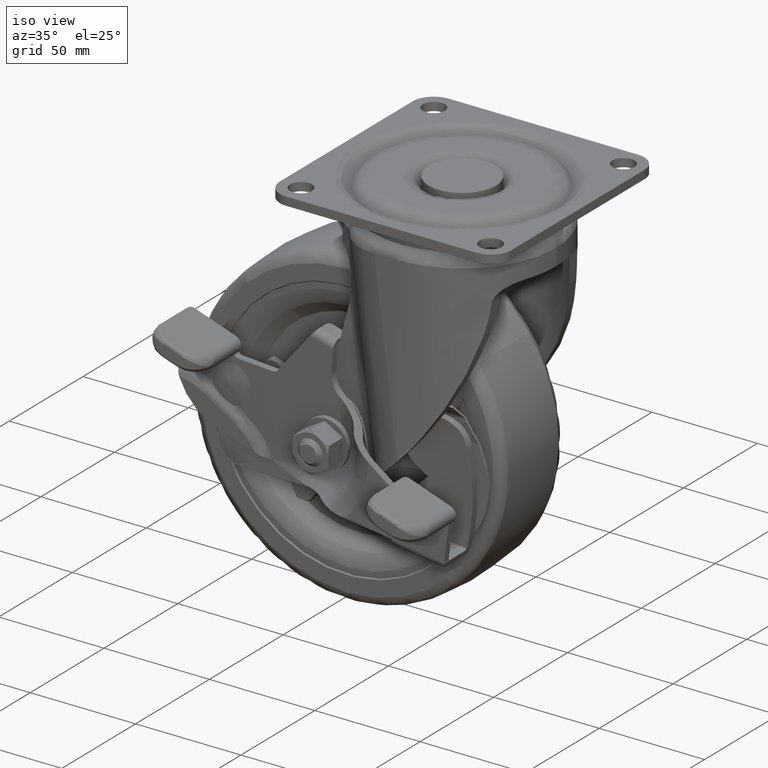
[diagram: clean part render]
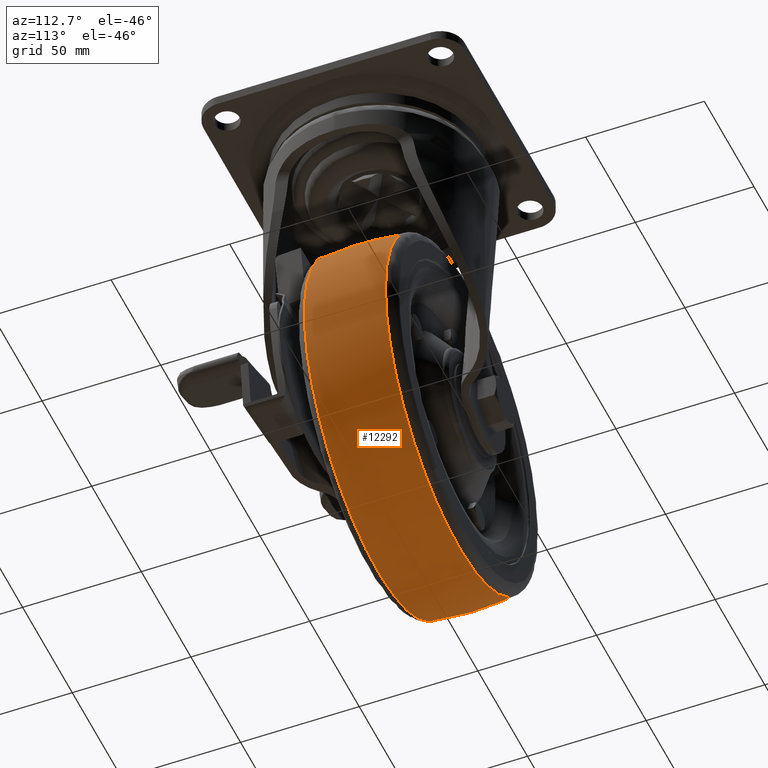
[diagram: tour spotlight — one face highlighted and labeled with its STEP entity id]
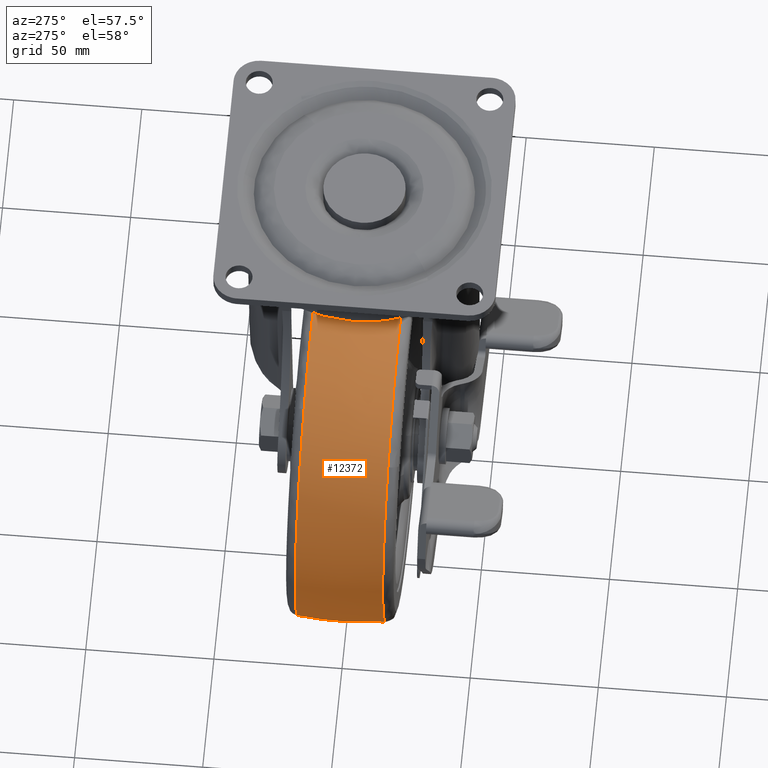
[diagram: tour spotlight — one face highlighted and labeled with its STEP entity id]
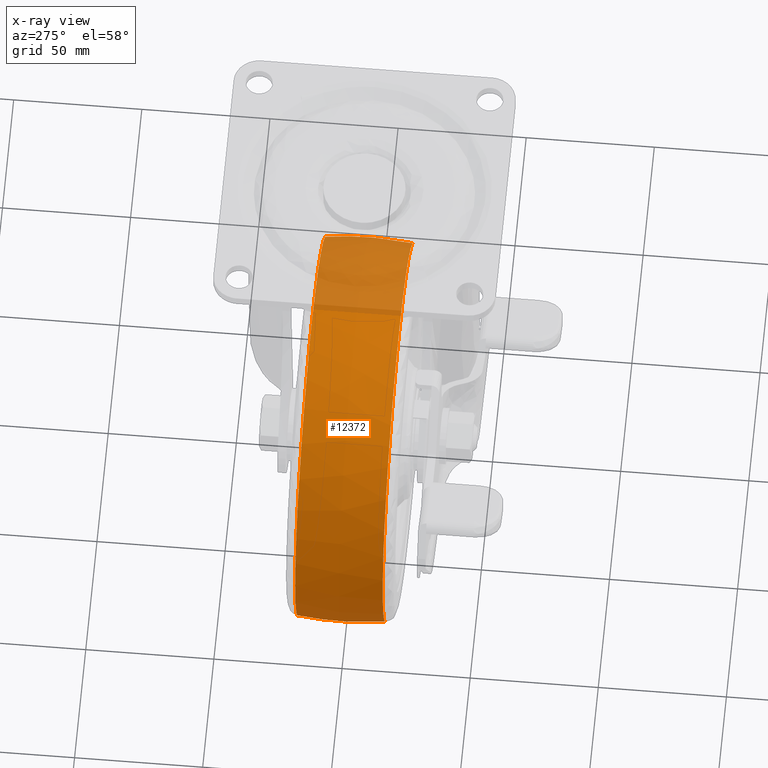
[diagram: x-ray of the same camera — body ghosted, this tour face saturated]
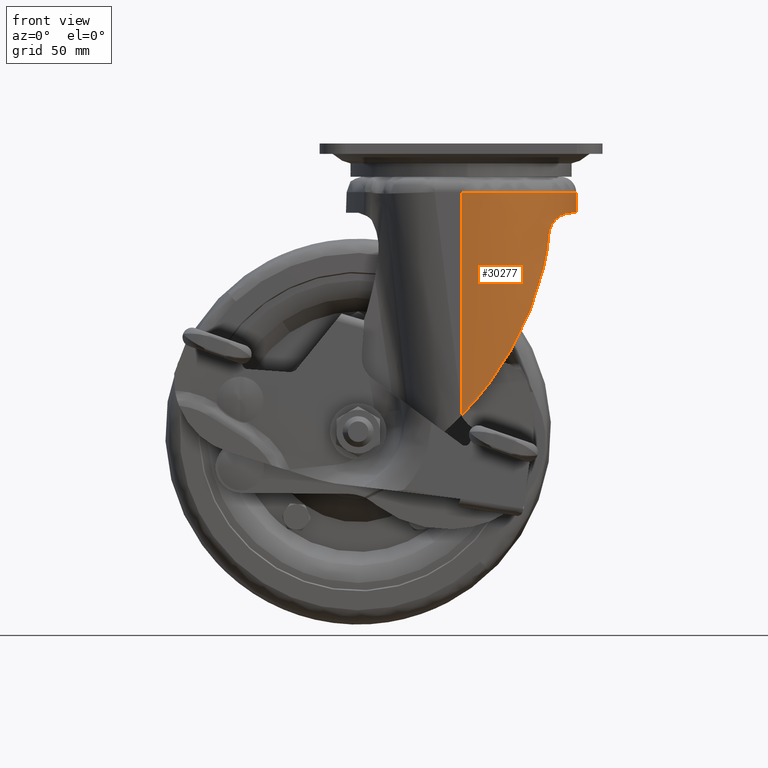
[diagram: tour spotlight — one face highlighted and labeled with its STEP entity id]
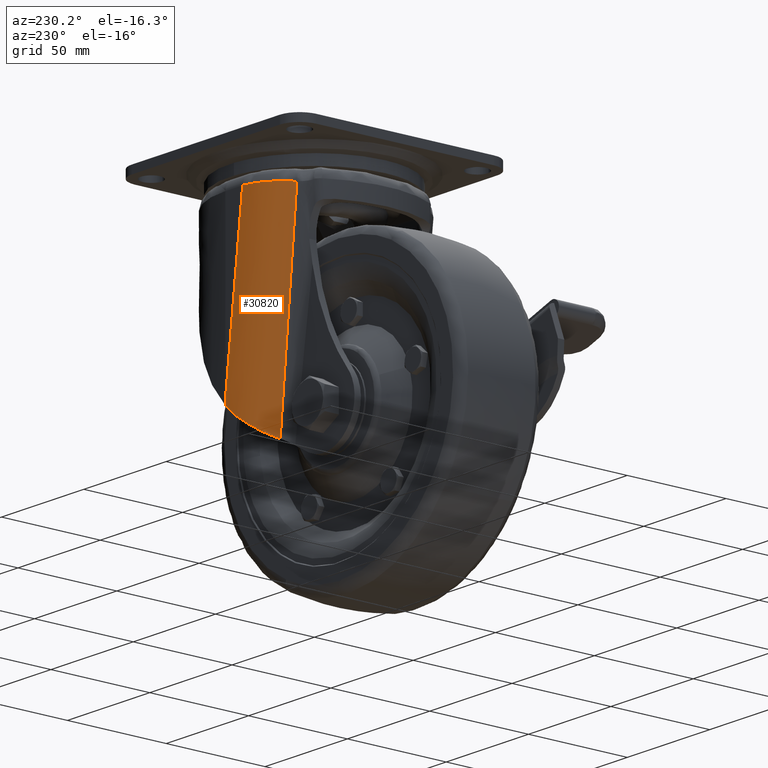
[diagram: tour spotlight — one face highlighted and labeled with its STEP entity id]
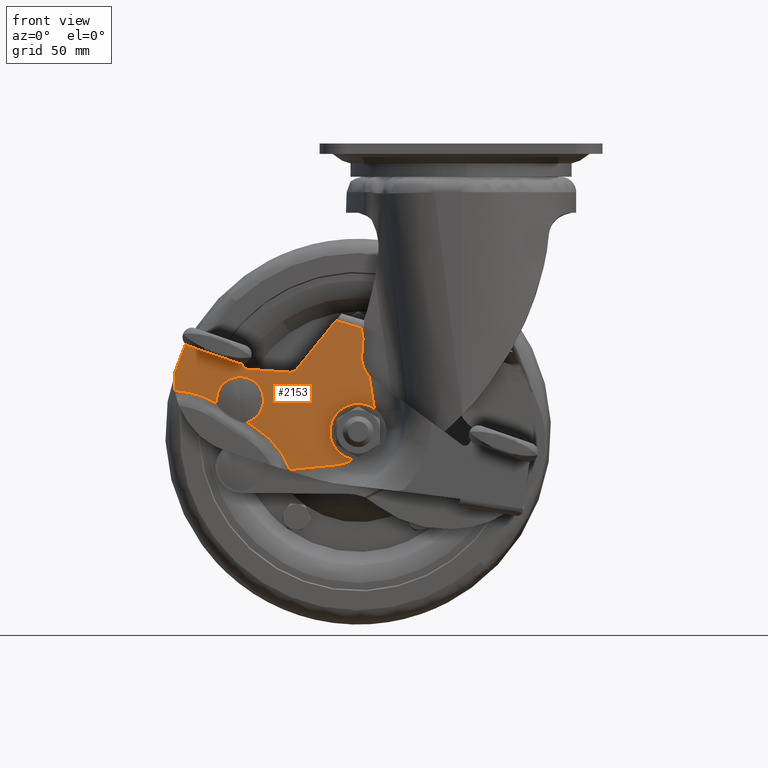
[diagram: tour spotlight — one face highlighted and labeled with its STEP entity id]
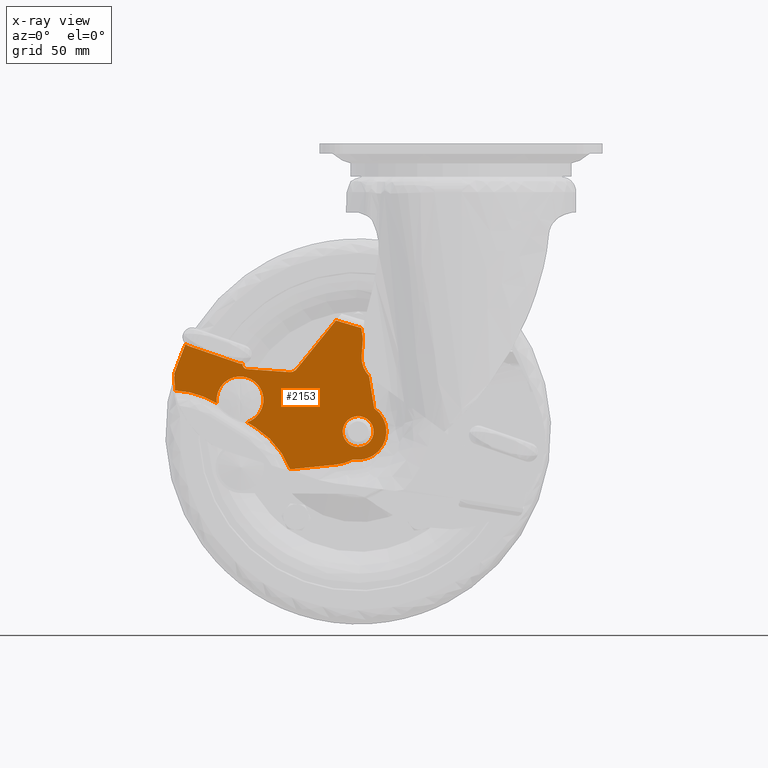
[diagram: x-ray of the same camera — body ghosted, this tour face saturated]
A machine part: a face-by-face anatomy tour. The part has 570 B-rep faces; the first image is the clean iso view, then the 5 largest visible faces are spotlighted one at a time (largest first), each with its STEP entity span.

Face 1 — auxiliary view, entity #12292. In plain terms, the highlighted face is a freeform B-spline surface patch.
Definition (entity closure, byte-faithful):
#12080=CARTESIAN_POINT('',(-99.801288911416719,-17.067975670754219,-155.448176490385290));
#12081=VERTEX_POINT('',#12080);
#12095=CARTESIAN_POINT('',(10.600658245617300,-17.067976047726422,-165.884232373904810));
#12096=VERTEX_POINT('',#12095);
#12097=CARTESIAN_POINT('',(-99.801288911416719,-17.067975670754219,-155.448176490385290));
#12098=CARTESIAN_POINT('',(-56.353115113555269,-17.067975836945088,-215.249458557347310));
#12099=CARTESIAN_POINT('',(3.448171947311643,-17.067976025415302,-171.801283143000090));
#12100=CARTESIAN_POINT('',(7.210549716229821,-17.067976037272839,-169.067755867698930));
#12101=CARTESIAN_POINT('',(10.600658245617307,-17.067976047726418,-165.884232373904720));
#12109=(BOUNDED_CURVE()B_SPLINE_CURVE(2,(#12097,#12098,#12099,#12100,#12101),.UNSPECIFIED.,.F.,.U.)B_SPLINE_CURVE_WITH_KNOTS((3,2,3),(0.0,0.250000000000000,0.271678741789646),.UNSPECIFIED.)CURVE()GEOMETRIC_REPRESENTATION_ITEM()RATIONAL_B_SPLINE_CURVE((1.0,0.707106781186547,1.0,0.974601774149620,0.953608360940244))REPRESENTATION_ITEM(''));
#12110=EDGE_CURVE('',#12081,#12096,#12109,.T.);
#12161=CARTESIAN_POINT('',(19.801283189378282,-17.067975670681509,-68.551823509609321));
#12162=VERTEX_POINT('',#12161);
#12163=CARTESIAN_POINT('',(10.600658245617307,-17.067976047726418,-165.884232373904720));
#12164=CARTESIAN_POINT('',(58.106001634832410,-17.067975859188060,-121.273746411665800));
#12165=CARTESIAN_POINT('',(19.801283189378282,-17.067975670681509,-68.551823509609321));
#12173=(BOUNDED_CURVE()B_SPLINE_CURVE(2,(#12163,#12164,#12165),.UNSPECIFIED.,.F.,.U.)B_SPLINE_CURVE_WITH_KNOTS((3,3),(0.271678741789646,0.500000000000000),.UNSPECIFIED.)CURVE()GEOMETRIC_REPRESENTATION_ITEM()RATIONAL_B_SPLINE_CURVE((0.953608360940244,0.732505007036928,1.0))REPRESENTATION_ITEM(''));
#12174=EDGE_CURVE('',#12096,#12162,#12173,.T.);
#12195=CARTESIAN_POINT('',(-100.825699189843280,-18.790862671410036,-153.646061333073530));
#12196=CARTESIAN_POINT('',(-101.908719896113210,-9.441236634920365,-154.387582589393820));
#12197=CARTESIAN_POINT('',(-101.908719896113170,0.0,-154.387582589393820));
#12198=CARTESIAN_POINT('',(-101.908719896113210,9.441236634920362,-154.387582589393820));
#12199=CARTESIAN_POINT('',(-100.825699189843280,18.790862671410036,-153.646061333073530));
#12200=CARTESIAN_POINT('',(-100.223784270479830,-18.790862671410046,-154.474526165856900));
#12201=CARTESIAN_POINT('',(-101.296087691779260,-9.441236634920367,-155.230798499805220));
#12202=CARTESIAN_POINT('',(-101.296087691779290,0.0,-155.230798499805300));
#12203=CARTESIAN_POINT('',(-101.296087691779260,9.441236634920363,-155.230798499805220));
#12204=CARTESIAN_POINT('',(-100.223784270479830,18.790862671410032,-154.474526165856900));
#12205=CARTESIAN_POINT('',(-56.302120411286715,-18.790862671410043,-214.927511686068390));
#12206=CARTESIAN_POINT('',(-56.592384755611448,-9.441236634920367,-216.760168492794240));
#12207=CARTESIAN_POINT('',(-56.592384755611477,0.0,-216.760168492794210));
#12208=CARTESIAN_POINT('',(-56.592384755611448,9.441236634920365,-216.760168492794240));
#12209=CARTESIAN_POINT('',(-56.302120411286715,18.790862671410043,-214.927511686068390));
#12210=CARTESIAN_POINT('',(3.312694206879343,-18.790862671410043,-171.614814618166040));
#12211=CARTESIAN_POINT('',(4.083890438079905,-9.441236634920367,-172.676275193691370));
#12212=CARTESIAN_POINT('',(4.083890438079891,0.0,-172.676275193691310));
#12213=CARTESIAN_POINT('',(4.083890438079905,9.441236634920363,-172.676275193691370));
#12214=CARTESIAN_POINT('',(3.312694206879343,18.790862671410029,-171.614814618166040));
#12215=CARTESIAN_POINT('',(62.927508825045372,-18.790862671410043,-128.302117550263740));
#12216=CARTESIAN_POINT('',(64.760165631771216,-9.441236634920367,-128.592381894588500));
#12217=CARTESIAN_POINT('',(64.760165631771230,0.0,-128.592381894588500));
#12218=CARTESIAN_POINT('',(64.760165631771216,9.441236634920365,-128.592381894588500));
#12219=CARTESIAN_POINT('',(62.927508825045372,18.790862671410043,-128.302117550263740));
#12220=CARTESIAN_POINT('',(19.005844965852262,-18.790862671410046,-67.849132030052331));
#12221=CARTESIAN_POINT('',(20.056462695603411,-9.441236634920367,-67.063011901599538));
#12222=CARTESIAN_POINT('',(20.056462695603408,0.0,-67.063011901599538));
#12223=CARTESIAN_POINT('',(20.056462695603411,9.441236634920363,-67.063011901599538));
#12224=CARTESIAN_POINT('',(19.005844965852262,18.790862671410032,-67.849132030052331));
#12225=CARTESIAN_POINT('',(18.403930046488814,-18.790862671410046,-67.020667197268878));
#12226=CARTESIAN_POINT('',(19.443830491269491,-9.441236634920365,-66.219795991188121));
#12227=CARTESIAN_POINT('',(19.443830491269498,0.0,-66.219795991188136));
#12228=CARTESIAN_POINT('',(19.443830491269491,9.441236634920362,-66.219795991188121));
#12229=CARTESIAN_POINT('',(18.403930046488814,18.790862671410036,-67.020667197268878));
#12237=(BOUNDED_SURFACE()B_SPLINE_SURFACE(2,2,((#12195,#12200,#12205,#12210,#12215,#12220,#12225),(#12196,#12201,#12206,#12211,#12216,#12221,#12226),(#12197,#12202,#12207,#12212,#12217,#12222,#12227),(#12198,#12203,#12208,#12213,#12218,#12223,#12228),(#12199,#12204,#12209,#12214,#12219,#12224,#12229)),.UNSPECIFIED.,.F.,.F.,.U.)B_SPLINE_SURFACE_WITH_KNOTS((3,2,3),(3,1,2,1,3),(0.0,19.164329818582051,38.328659637164101),(0.0,2.485281374238576,126.749350086167300,251.013418798096010,253.498700172334590),.UNSPECIFIED.)GEOMETRIC_REPRESENTATION_ITEM()RATIONAL_B_SPLINE_SURFACE(((0.977410108217283,0.971750874411567,0.683129950320034,0.966091640605850,0.683129950320034,0.971750874411567,0.977410108217283),(0.991999798660378,0.986256090109950,0.693326954038109,0.980512381559522,0.693326954038109,0.986256090109950,0.991999798660378),(1.011715728752538,1.005857864376269,0.707106781186548,1.0,0.707106781186548,1.005857864376269,1.011715728752538),(0.991999798660378,0.986256090109950,0.693326954038109,0.980512381559522,0.693326954038109,0.986256090109950,0.991999798660378),(0.977410108217283,0.971750874411567,0.683129950320034,0.966091640605850,0.683129950320034,0.971750874411567,0.977410108217283)))REPRESENTATION_ITEM('')SURFACE());
#12238=CARTESIAN_POINT('',(-99.801288722816025,17.067977502842581,-155.448176353358890));
#12239=VERTEX_POINT('',#12238);
#12240=CARTESIAN_POINT('',(-99.801288911416719,-17.067975670754219,-155.448176490385290));
#12241=CARTESIAN_POINT('',(-100.402235779233910,-11.232254873081921,-155.884789936327910));
#12242=CARTESIAN_POINT('',(-100.968541625197500,0.179681517935860,-156.296235207291400));
#12243=CARTESIAN_POINT('',(-100.365785338998410,11.585901867770710,-155.858307141975100));
#12244=CARTESIAN_POINT('',(-99.801288722816025,17.067977502842581,-155.448176353358890));
#12245=B_SPLINE_CURVE_WITH_KNOTS('',3,(#12240,#12241,#12242,#12243,#12244),.UNSPECIFIED.,.F.,.U.,(4,1,4),(-7.662209E-009,17.648392038733579,34.227281313237022),.UNSPECIFIED.);
#12246=EDGE_CURVE('',#12081,#12239,#12245,.T.);
#12247=ORIENTED_EDGE('',*,*,#12246,.T.);
#12248=CARTESIAN_POINT('',(-6.028545718795698,17.067971607545822,-177.649658080133490));
#12249=VERTEX_POINT('',#12248);
#12250=CARTESIAN_POINT('',(-99.801288722816025,17.067977502842581,-155.448176353358890));
#12251=CARTESIAN_POINT('',(-62.456326887211731,17.067974555209403,-206.849108354264730));
#12252=CARTESIAN_POINT('',(-6.028545718795705,17.067971607545822,-177.649658080133520));
#12260=(BOUNDED_CURVE()B_SPLINE_CURVE(2,(#12250,#12251,#12252),.UNSPECIFIED.,.F.,.U.)B_SPLINE_CURVE_WITH_KNOTS((3,3),(0.0,0.224102483945189),.UNSPECIFIED.)CURVE()GEOMETRIC_REPRESENTATION_ITEM()RATIONAL_B_SPLINE_CURVE((1.0,0.737447608532814,0.945604361813997))REPRESENTATION_ITEM(''));
#12261=EDGE_CURVE('',#12239,#12249,#12260,.T.);
#12262=ORIENTED_EDGE('',*,*,#12261,.T.);
#12263=CARTESIAN_POINT('',(19.801283000777389,17.067977502771960,-68.551823646635881));
#12264=VERTEX_POINT('',#12263);
#12265=CARTESIAN_POINT('',(-6.028545718795699,17.067971607545822,-177.649658080133460));
#12266=CARTESIAN_POINT('',(-1.069290437104812,17.067971798932639,-175.083412472960420));
#12267=CARTESIAN_POINT('',(3.448171590873926,17.067972021597800,-171.801284103774800));
#12268=CARTESIAN_POINT('',(63.249456621879332,17.067974969196062,-128.353106144913740));
#12269=CARTESIAN_POINT('',(19.801283000777389,17.067977502771960,-68.551823646635881));
#12277=(BOUNDED_CURVE()B_SPLINE_CURVE(2,(#12265,#12266,#12267,#12268,#12269),.UNSPECIFIED.,.F.,.U.)B_SPLINE_CURVE_WITH_KNOTS((3,2,3),(0.224102483945189,0.250000000000000,0.500000000000000),.UNSPECIFIED.)CURVE()GEOMETRIC_REPRESENTATION_ITEM()RATIONAL_B_SPLINE_CURVE((0.945604361813997,0.969659172653734,1.0,0.707106781186547,1.0))REPRESENTATION_ITEM(''));
#12278=EDGE_CURVE('',#12249,#12264,#12277,.T.);
#12279=ORIENTED_EDGE('',*,*,#12278,.T.);
#12280=CARTESIAN_POINT('',(19.801283189378282,-17.067975670681509,-68.551823509609321));
#12281=CARTESIAN_POINT('',(20.402237951156842,-11.232255805956891,-68.115204328368151));
#12282=CARTESIAN_POINT('',(20.968530157618989,0.179681546278295,-67.703768967082382));
#12283=CARTESIAN_POINT('',(20.365780275049438,11.585901885085990,-68.141692379889463));
#12284=CARTESIAN_POINT('',(19.801283000777389,17.067977502771960,-68.551823646635881));
#12285=B_SPLINE_CURVE_WITH_KNOTS('',3,(#12280,#12281,#12282,#12283,#12284),.UNSPECIFIED.,.F.,.U.,(4,1,4),(-7.663203E-009,17.648392038658820,34.227281313092533),.UNSPECIFIED.);
#12286=EDGE_CURVE('',#12162,#12264,#12285,.T.);
#12287=ORIENTED_EDGE('',*,*,#12286,.F.);
#12288=ORIENTED_EDGE('',*,*,#12174,.F.);
#12289=ORIENTED_EDGE('',*,*,#12110,.F.);
#12290=EDGE_LOOP('',(#12247,#12262,#12279,#12287,#12288,#12289));
#12291=FACE_OUTER_BOUND('',#12290,.T.);
#12292=ADVANCED_FACE('',(#12291),#12237,.T.);

Face 2 — auxiliary view, entity #12372. An x-ray twin of the same camera follows (body ghosted, this face saturated) — the face is partly hidden behind the body. In plain terms, the highlighted face is a freeform B-spline surface patch.
Definition (entity closure, byte-faithful):
#12065=CARTESIAN_POINT('',(-90.600663967662399,-17.067976047735520,-58.115767626096087));
#12066=VERTEX_POINT('',#12065);
#12080=CARTESIAN_POINT('',(-99.801288911416719,-17.067975670754219,-155.448176490385290));
#12081=VERTEX_POINT('',#12080);
#12082=CARTESIAN_POINT('',(-90.600663967662399,-17.067976047735520,-58.115767626096087));
#12083=CARTESIAN_POINT('',(-138.106007356866000,-17.067975859260756,-102.726253588335370));
#12084=CARTESIAN_POINT('',(-99.801288911416719,-17.067975670754219,-155.448176490385290));
#12092=(BOUNDED_CURVE()B_SPLINE_CURVE(2,(#12082,#12083,#12084),.UNSPECIFIED.,.F.,.U.)B_SPLINE_CURVE_WITH_KNOTS((3,3),(0.771678741789667,1.0),.UNSPECIFIED.)CURVE()GEOMETRIC_REPRESENTATION_ITEM()RATIONAL_B_SPLINE_CURVE((0.953608360940203,0.732505007036952,1.0))REPRESENTATION_ITEM(''));
#12093=EDGE_CURVE('',#12066,#12081,#12092,.T.);
#12161=CARTESIAN_POINT('',(19.801283189378282,-17.067975670681509,-68.551823509609321));
#12162=VERTEX_POINT('',#12161);
#12176=CARTESIAN_POINT('',(19.801283189378282,-17.067975670681509,-68.551823509609321));
#12177=CARTESIAN_POINT('',(-23.646890608483140,-17.067975836872385,-8.750541442647226));
#12178=CARTESIAN_POINT('',(-83.448177669350059,-17.067976025415302,-52.198716856994473));
#12179=CARTESIAN_POINT('',(-87.210555438271967,-17.067976037277408,-54.932244132298386));
#12180=CARTESIAN_POINT('',(-90.600663967662399,-17.067976047735520,-58.115767626096087));
#12188=(BOUNDED_CURVE()B_SPLINE_CURVE(2,(#12176,#12177,#12178,#12179,#12180),.UNSPECIFIED.,.F.,.U.)B_SPLINE_CURVE_WITH_KNOTS((3,2,3),(0.500000000000000,0.750000000000000,0.771678741789667),.UNSPECIFIED.)CURVE()GEOMETRIC_REPRESENTATION_ITEM()RATIONAL_B_SPLINE_CURVE((1.0,0.707106781186547,1.0,0.974601774149595,0.953608360940203))REPRESENTATION_ITEM(''));
#12189=EDGE_CURVE('',#12162,#12066,#12188,.T.);
#12238=CARTESIAN_POINT('',(-99.801288722816025,17.067977502842581,-155.448176353358890));
#12239=VERTEX_POINT('',#12238);
#12240=CARTESIAN_POINT('',(-99.801288911416719,-17.067975670754219,-155.448176490385290));
#12241=CARTESIAN_POINT('',(-100.402235779233910,-11.232254873081921,-155.884789936327910));
#12242=CARTESIAN_POINT('',(-100.968541625197500,0.179681517935860,-156.296235207291400));
#12243=CARTESIAN_POINT('',(-100.365785338998410,11.585901867770710,-155.858307141975100));
#12244=CARTESIAN_POINT('',(-99.801288722816025,17.067977502842581,-155.448176353358890));
#12245=B_SPLINE_CURVE_WITH_KNOTS('',3,(#12240,#12241,#12242,#12243,#12244),.UNSPECIFIED.,.F.,.U.,(4,1,4),(-7.662209E-009,17.648392038733579,34.227281313237022),.UNSPECIFIED.);
#12246=EDGE_CURVE('',#12081,#12239,#12245,.T.);
#12263=CARTESIAN_POINT('',(19.801283000777389,17.067977502771960,-68.551823646635881));
#12264=VERTEX_POINT('',#12263);
#12280=CARTESIAN_POINT('',(19.801283189378282,-17.067975670681509,-68.551823509609321));
#12281=CARTESIAN_POINT('',(20.402237951156842,-11.232255805956891,-68.115204328368151));
#12282=CARTESIAN_POINT('',(20.968530157618989,0.179681546278295,-67.703768967082382));
#12283=CARTESIAN_POINT('',(20.365780275049438,11.585901885085990,-68.141692379889463));
#12284=CARTESIAN_POINT('',(19.801283000777389,17.067977502771960,-68.551823646635881));
#12285=B_SPLINE_CURVE_WITH_KNOTS('',3,(#12280,#12281,#12282,#12283,#12284),.UNSPECIFIED.,.F.,.U.,(4,1,4),(-7.663203E-009,17.648392038658820,34.227281313092533),.UNSPECIFIED.);
#12286=EDGE_CURVE('',#12162,#12264,#12285,.T.);
#12293=CARTESIAN_POINT('',(20.825693467797336,-18.790862671410036,-70.353938666926524));
#12294=CARTESIAN_POINT('',(21.908714174067264,-9.441236634920365,-69.612417410606199));
#12295=CARTESIAN_POINT('',(21.908714174067253,0.0,-69.612417410606199));
#12296=CARTESIAN_POINT('',(21.908714174067264,9.441236634920362,-69.612417410606199));
#12297=CARTESIAN_POINT('',(20.825693467797336,18.790862671410036,-70.353938666926524));
#12298=CARTESIAN_POINT('',(20.223778548433891,-18.790862671410046,-69.525473834143071));
#12299=CARTESIAN_POINT('',(21.296081969733340,-9.441236634920367,-68.769201500194782));
#12300=CARTESIAN_POINT('',(21.296081969733343,0.0,-68.769201500194782));
#12301=CARTESIAN_POINT('',(21.296081969733340,9.441236634920363,-68.769201500194782));
#12302=CARTESIAN_POINT('',(20.223778548433891,18.790862671410032,-69.525473834143071));
#12303=CARTESIAN_POINT('',(-23.697885310759226,-18.790862671410043,-9.072488313931679));
#12304=CARTESIAN_POINT('',(-23.407620966434472,-9.441236634920367,-7.239831507205835));
#12305=CARTESIAN_POINT('',(-23.407620966434465,0.0,-7.239831507205835));
#12306=CARTESIAN_POINT('',(-23.407620966434472,9.441236634920365,-7.239831507205835));
#12307=CARTESIAN_POINT('',(-23.697885310759226,18.790862671410043,-9.072488313931679));
#12308=CARTESIAN_POINT('',(-83.312699928925269,-18.790862671410043,-52.385185381833971));
#12309=CARTESIAN_POINT('',(-84.083896160125789,-9.441236634920367,-51.323724806308654));
#12310=CARTESIAN_POINT('',(-84.083896160125789,0.0,-51.323724806308668));
#12311=CARTESIAN_POINT('',(-84.083896160125789,9.441236634920363,-51.323724806308654));
#12312=CARTESIAN_POINT('',(-83.312699928925269,18.790862671410029,-52.385185381833971));
#12313=CARTESIAN_POINT('',(-142.927514547091310,-18.790862671410043,-95.697882449736298));
#12314=CARTESIAN_POINT('',(-144.760171353817130,-9.441236634920367,-95.407618105411544));
#12315=CARTESIAN_POINT('',(-144.760171353817130,0.0,-95.407618105411544));
#12316=CARTESIAN_POINT('',(-144.760171353817130,9.441236634920365,-95.407618105411544));
#12317=CARTESIAN_POINT('',(-142.927514547091310,18.790862671410043,-95.697882449736298));
#12318=CARTESIAN_POINT('',(-99.005850687898203,-18.790862671410046,-156.150867969947740));
#12319=CARTESIAN_POINT('',(-100.056468417649310,-9.441236634920367,-156.936988098400460));
#12320=CARTESIAN_POINT('',(-100.056468417649370,0.0,-156.936988098400520));
#12321=CARTESIAN_POINT('',(-100.056468417649310,9.441236634920363,-156.936988098400460));
#12322=CARTESIAN_POINT('',(-99.005850687898203,18.790862671410032,-156.150867969947740));
#12323=CARTESIAN_POINT('',(-98.403935768534751,-18.790862671410046,-156.979332802731190));
#12324=CARTESIAN_POINT('',(-99.443836213315393,-9.441236634920365,-157.780204008811860));
#12325=CARTESIAN_POINT('',(-99.443836213315379,0.0,-157.780204008811950));
#12326=CARTESIAN_POINT('',(-99.443836213315393,9.441236634920362,-157.780204008811860));
#12327=CARTESIAN_POINT('',(-98.403935768534751,18.790862671410036,-156.979332802731190));
#12335=(BOUNDED_SURFACE()B_SPLINE_SURFACE(2,2,((#12293,#12298,#12303,#12308,#12313,#12318,#12323),(#12294,#12299,#12304,#12309,#12314,#12319,#12324),(#12295,#12300,#12305,#12310,#12315,#12320,#12325),(#12296,#12301,#12306,#12311,#12316,#12321,#12326),(#12297,#12302,#12307,#12312,#12317,#12322,#12327)),.UNSPECIFIED.,.F.,.F.,.U.)B_SPLINE_SURFACE_WITH_KNOTS((3,2,3),(3,1,2,1,3),(0.0,19.164329818582051,38.328659637164101),(0.0,2.485281374238576,126.749350086167300,251.013418798096010,253.498700172334590),.UNSPECIFIED.)GEOMETRIC_REPRESENTATION_ITEM()RATIONAL_B_SPLINE_SURFACE(((0.977410108217283,0.971750874411567,0.683129950320034,0.966091640605850,0.683129950320034,0.971750874411567,0.977410108217283),(0.991999798660378,0.986256090109950,0.693326954038109,0.980512381559522,0.693326954038109,0.986256090109950,0.991999798660378),(1.011715728752538,1.005857864376269,0.707106781186548,1.0,0.707106781186548,1.005857864376269,1.011715728752538),(0.991999798660378,0.986256090109950,0.693326954038109,0.980512381559522,0.693326954038109,0.986256090109950,0.991999798660378),(0.977410108217283,0.971750874411567,0.683129950320034,0.966091640605850,0.683129950320034,0.971750874411567,0.977410108217283)))REPRESENTATION_ITEM('')SURFACE());
#12336=ORIENTED_EDGE('',*,*,#12246,.F.);
#12337=ORIENTED_EDGE('',*,*,#12093,.F.);
#12338=ORIENTED_EDGE('',*,*,#12189,.F.);
#12339=ORIENTED_EDGE('',*,*,#12286,.T.);
#12340=CARTESIAN_POINT('',(-73.971460003250797,17.067971607535242,-46.350341919865301));
#12341=VERTEX_POINT('',#12340);
#12342=CARTESIAN_POINT('',(19.801283000777389,17.067977502771960,-68.551823646635881));
#12343=CARTESIAN_POINT('',(-17.543678834831436,17.067974555138797,-17.150891645723721));
#12344=CARTESIAN_POINT('',(-73.971460003250812,17.067971607535235,-46.350341919865308));
#12352=(BOUNDED_CURVE()B_SPLINE_CURVE(2,(#12342,#12343,#12344),.UNSPECIFIED.,.F.,.U.)B_SPLINE_CURVE_WITH_KNOTS((3,3),(0.500000000000000,0.724102483945209),.UNSPECIFIED.)CURVE()GEOMETRIC_REPRESENTATION_ITEM()RATIONAL_B_SPLINE_CURVE((1.0,0.737447608532790,0.945604361814034))REPRESENTATION_ITEM(''));
#12353=EDGE_CURVE('',#12264,#12341,#12352,.T.);
#12354=ORIENTED_EDGE('',*,*,#12353,.T.);
#12355=CARTESIAN_POINT('',(-73.971460003250812,17.067971607535235,-46.350341919865308));
#12356=CARTESIAN_POINT('',(-78.930715284937435,17.067971798927324,-48.916587527036903));
#12357=CARTESIAN_POINT('',(-83.448177312912549,17.067972021597829,-52.198715896219888));
#12358=CARTESIAN_POINT('',(-143.249462343918000,17.067974969266704,-95.646893855080975));
#12359=CARTESIAN_POINT('',(-99.801288722816025,17.067977502842581,-155.448176353358890));
#12367=(BOUNDED_CURVE()B_SPLINE_CURVE(2,(#12355,#12356,#12357,#12358,#12359),.UNSPECIFIED.,.F.,.U.)B_SPLINE_CURVE_WITH_KNOTS((3,2,3),(0.724102483945209,0.750000000000000,1.0),.UNSPECIFIED.)CURVE()GEOMETRIC_REPRESENTATION_ITEM()RATIONAL_B_SPLINE_CURVE((0.945604361814034,0.969659172653757,1.0,0.707106781186547,1.0))REPRESENTATION_ITEM(''));
#12368=EDGE_CURVE('',#12341,#12239,#12367,.T.);
#12369=ORIENTED_EDGE('',*,*,#12368,.T.);
#12370=EDGE_LOOP('',(#12336,#12337,#12338,#12339,#12354,#12369));
#12371=FACE_OUTER_BOUND('',#12370,.T.);
#12372=ADVANCED_FACE('',(#12371),#12335,.T.);

Face 3 — front view, entity #30277. In plain terms, the highlighted face is a freeform B-spline surface patch.
Definition (entity closure, byte-faithful):
#26826=CARTESIAN_POINT('',(0.199999999999770,-44.866289000000002,-18.899999999999999));
#26827=VERTEX_POINT('',#26826);
#27756=CARTESIAN_POINT('',(0.199999999999783,-44.866289000000002,-103.455417068400000));
#27757=VERTEX_POINT('',#27756);
#27758=CARTESIAN_POINT('',(0.199999999999783,-44.866289000000002,-103.455417068400000));
#27759=CARTESIAN_POINT('',(0.199999999999770,-44.866289000000002,-18.899999999999999));
#27760=QUASI_UNIFORM_CURVE('',1,(#27758,#27759),.UNSPECIFIED.,.F.,.U.);
#27761=EDGE_CURVE('',#27757,#26827,#27760,.T.);
#27789=CARTESIAN_POINT('',(0.354147820909089,-44.866022315131197,-105.586709417799200));
#27790=VERTEX_POINT('',#27789);
#27832=CARTESIAN_POINT('',(0.354147820909089,-44.866022315131197,-105.586709417799200));
#27833=CARTESIAN_POINT('',(0.199999999999783,-44.866289000000002,-103.455417068400000));
#27834=QUASI_UNIFORM_CURVE('',1,(#27832,#27833),.UNSPECIFIED.,.F.,.U.);
#27835=EDGE_CURVE('',#27790,#27757,#27834,.T.);
#27890=CARTESIAN_POINT('',(32.070784013565849,-31.444341081051000,-48.361416808509503));
#27891=VERTEX_POINT('',#27890);
#27897=CARTESIAN_POINT('',(32.070784013565849,-31.444341081050950,-48.361416808509503));
#27898=CARTESIAN_POINT('',(31.746602575267239,-31.776257661449900,-49.705694394740171));
#27899=CARTESIAN_POINT('',(31.401372962700890,-32.119337165806961,-51.037767299176210));
#27900=CARTESIAN_POINT('',(30.669520600953192,-32.821178812800312,-53.679661433772722));
#27901=CARTESIAN_POINT('',(30.282896391754591,-33.179943994683050,-54.989481185242880));
#27902=CARTESIAN_POINT('',(29.061495895328608,-34.270794656692360,-58.888308615654950));
#27903=CARTESIAN_POINT('',(28.165321783400049,-35.017226022204767,-61.446799021046303));
#27904=CARTESIAN_POINT('',(26.208790262799269,-36.506855198028049,-66.493782647142126));
#27905=CARTESIAN_POINT('',(25.148427379475660,-37.250181422107318,-68.982237665366355));
#27906=CARTESIAN_POINT('',(22.859005378650821,-38.697350910883081,-73.897318348877576));
#27907=CARTESIAN_POINT('',(21.629963984485901,-39.401327179787629,-76.323914548198019));
#27908=CARTESIAN_POINT('',(18.994403042360499,-40.734774624440853,-81.121259429321753));
#27909=CARTESIAN_POINT('',(17.587929429050970,-41.364404002365227,-83.491983795336751));
#27910=CARTESIAN_POINT('',(15.710178180944400,-42.081088248142777,-86.423350870433850));
#27911=CARTESIAN_POINT('',(15.328298810330599,-42.221000867454961,-87.008503187602898));
#27912=CARTESIAN_POINT('',(14.555180902444761,-42.492100584925737,-88.171328751092929));
#27913=CARTESIAN_POINT('',(14.163700614615900,-42.623389802925601,-88.749397660528274));
#27914=CARTESIAN_POINT('',(12.974441601642861,-43.003628980143503,-90.473650895135634));
#27915=CARTESIAN_POINT('',(12.161851329737690,-43.238962625174331,-91.609885286584742));
#27916=CARTESIAN_POINT('',(9.664163811935211,-43.883355653755757,-94.979276126711397));
#27917=CARTESIAN_POINT('',(7.919274251416211,-44.231156424912783,-97.173170038908395));
#27918=CARTESIAN_POINT('',(5.177591848257485,-44.596941077077886,-100.386456164196700));
#27919=CARTESIAN_POINT('',(4.242943600487857,-44.692808103629368,-101.444612878654790));
#27920=CARTESIAN_POINT('',(2.330948366536485,-44.825612739758903,-103.535070146768800));
#27921=CARTESIAN_POINT('',(1.353603525352972,-44.862564069537562,-104.567370453118500));
#27922=CARTESIAN_POINT('',(0.354147820909083,-44.866022315131197,-105.586709417799200));
#27923=B_SPLINE_CURVE_WITH_KNOTS('',3,(#27897,#27898,#27899,#27900,#27901,#27902,#27903,#27904,#27905,#27906,#27907,#27908,#27909,#27910,#27911,#27912,#27913,#27914,#27915,#27916,#27917,#27918,#27919,#27920,#27921,#27922),.UNSPECIFIED.,.F.,.U.,(4,2,2,2,2,2,2,2,2,2,2,2,4),(0.0,0.062500000000000,0.125000000000000,0.250000000000000,0.375000000000000,0.500000000000000,0.625000000000000,0.656250000000000,0.687500000000000,0.750000000000000,0.875000000000000,0.937500000000000,1.0),.UNSPECIFIED.);
#27924=EDGE_CURVE('',#27891,#27790,#27923,.T.);
#29857=CARTESIAN_POINT('',(44.750000000000000,-0.316289000000025,-18.899999999999999));
#29858=VERTEX_POINT('',#29857);
#29900=CARTESIAN_POINT('',(44.750000000000000,-0.316289000000025,-18.899999999999999));
#29901=CARTESIAN_POINT('',(44.749999999999773,-44.866289000000037,-18.900000000000002));
#29902=CARTESIAN_POINT('',(0.199999999999777,-44.866289000000023,-18.899999999999999));
#29910=(BOUNDED_CURVE()B_SPLINE_CURVE(2,(#29900,#29901,#29902),.UNSPECIFIED.,.F.,.U.)CURVE()GEOMETRIC_REPRESENTATION_ITEM()QUASI_UNIFORM_CURVE()RATIONAL_B_SPLINE_CURVE((1.0,0.707106781186548,1.0))REPRESENTATION_ITEM(''));
#29911=EDGE_CURVE('',#29858,#26827,#29910,.T.);
#30179=CARTESIAN_POINT('',(-1.334284978626255,-44.839861066989002,-16.732832264555011));
#30180=CARTESIAN_POINT('',(-1.334284978626255,-44.839861066989002,-107.808056346630290));
#30181=CARTESIAN_POINT('',(47.254667716049205,-46.514239307226482,-16.732832264555018));
#30182=CARTESIAN_POINT('',(47.254667716049205,-46.514239307226482,-107.808056346630340));
#30183=CARTESIAN_POINT('',(44.687868180138672,2.035749432208256,-16.732832264555011));
#30184=CARTESIAN_POINT('',(44.687868180138672,2.035749432208256,-107.808056346630290));
#30192=(BOUNDED_SURFACE()B_SPLINE_SURFACE(1,2,((#30179,#30181,#30183),(#30180,#30182,#30184)),.UNSPECIFIED.,.F.,.F.,.U.)B_SPLINE_SURFACE_WITH_KNOTS((2,2),(3,3),(0.0,91.075224082075323),(0.0,78.409876604924733),.UNSPECIFIED.)GEOMETRIC_REPRESENTATION_ITEM()RATIONAL_B_SPLINE_SURFACE(((1.0,0.675590207615660,1.0),(1.0,0.675590207615660,1.0)))REPRESENTATION_ITEM('')SURFACE());
#30193=CARTESIAN_POINT('',(44.750000000000000,-0.316289000000025,-26.899999999999999));
#30194=VERTEX_POINT('',#30193);
#30195=CARTESIAN_POINT('',(44.750000000000000,-0.316289000000025,-18.899999999999999));
#30196=CARTESIAN_POINT('',(44.750000000000000,-0.316289000000025,-26.899999999999999));
#30197=QUASI_UNIFORM_CURVE('',1,(#30195,#30196),.UNSPECIFIED.,.F.,.U.);
#30198=EDGE_CURVE('',#29858,#30194,#30197,.T.);
#30199=ORIENTED_EDGE('',*,*,#30198,.F.);
#30200=ORIENTED_EDGE('',*,*,#29911,.T.);
#30201=ORIENTED_EDGE('',*,*,#27761,.F.);
#30202=ORIENTED_EDGE('',*,*,#27835,.F.);
#30203=ORIENTED_EDGE('',*,*,#27924,.F.);
#30204=CARTESIAN_POINT('',(34.162931724782403,-29.147205888953700,-35.194157685212687));
#30205=VERTEX_POINT('',#30204);
#30206=CARTESIAN_POINT('',(34.162931724782403,-29.147205888953700,-35.194157685212687));
#30207=CARTESIAN_POINT('',(33.985754807335667,-29.355920983712149,-37.446333085582637));
#30208=CARTESIAN_POINT('',(33.720325611172143,-29.665301102119319,-39.666924238428521));
#30209=CARTESIAN_POINT('',(33.021170746538431,-30.445137157138689,-44.053264909792638));
#30210=CARTESIAN_POINT('',(32.587429611858667,-30.915368043101921,-46.219051232794371));
#30211=CARTESIAN_POINT('',(32.070784013565849,-31.444341081051000,-48.361416808509503));
#30212=B_SPLINE_CURVE_WITH_KNOTS('',3,(#30206,#30207,#30208,#30209,#30210,#30211),.UNSPECIFIED.,.F.,.U.,(4,2,4),(0.0,0.500000000000000,1.0),.UNSPECIFIED.);
#30213=EDGE_CURVE('',#30205,#27891,#30212,.T.);
#30214=ORIENTED_EDGE('',*,*,#30213,.F.);
#30215=CARTESIAN_POINT('',(43.135210511504113,-12.202003043876820,-26.899999999999999));
#30216=VERTEX_POINT('',#30215);
#30217=CARTESIAN_POINT('',(43.135210511504113,-12.202003043876820,-26.899999999999999));
#30218=CARTESIAN_POINT('',(42.881577267248687,-13.118211922419800,-26.899999999999999));
#30219=CARTESIAN_POINT('',(42.599946121295567,-14.021562865159391,-26.910584508964721));
#30220=CARTESIAN_POINT('',(41.982681428001513,-15.801685200741090,-26.968719265997109));
#30221=CARTESIAN_POINT('',(41.647039549244496,-16.678460952166059,-27.016196525678080));
#30222=CARTESIAN_POINT('',(40.923589089616861,-18.404048674678510,-27.168141797444459));
#30223=CARTESIAN_POINT('',(40.535765151328583,-19.252872996779079,-27.272435112534620));
#30224=CARTESIAN_POINT('',(39.916420019602469,-20.503534893857310,-27.492420931907070));
#30225=CARTESIAN_POINT('',(39.703706064854998,-20.916652968564680,-27.576413934934148));
#30226=CARTESIAN_POINT('',(39.266074321807793,-21.734963692398470,-27.770603165331810));
#30227=CARTESIAN_POINT('',(39.041154582142902,-22.140158180362679,-27.880774688330401));
#30228=CARTESIAN_POINT('',(38.579535227366073,-22.942111217255949,-28.133720887223170));
#30229=CARTESIAN_POINT('',(38.345247692936077,-23.334655986534251,-28.275203928989939));
#30230=CARTESIAN_POINT('',(37.872328078207460,-24.100755305765968,-28.593610507162101));
#30231=CARTESIAN_POINT('',(37.633601112700717,-24.474467095178429,-28.770544620084632));
#30232=CARTESIAN_POINT('',(37.334038868909637,-24.928836711558429,-29.018687619893409));
#30233=CARTESIAN_POINT('',(37.274070656600387,-25.019070393989910,-29.069671552136011));
#30234=CARTESIAN_POINT('',(37.154073386424997,-25.198221879110640,-29.174500331169341));
#30235=CARTESIAN_POINT('',(37.093973303628587,-25.287243670419439,-29.228411449259390));
#30236=CARTESIAN_POINT('',(36.914248980622027,-25.551419174281570,-29.394141040565842));
#30237=CARTESIAN_POINT('',(36.795292745835717,-25.723554702065311,-29.509848026256400));
#30238=CARTESIAN_POINT('',(36.441911774070157,-26.227574907797180,-29.873877689311989));
#30239=CARTESIAN_POINT('',(36.210913050705038,-26.547136602723619,-30.138986488863381));
#30240=CARTESIAN_POINT('',(35.875791839723597,-26.999159118943108,-30.576971393268082));
#30241=CARTESIAN_POINT('',(35.765994069671443,-27.145266581044641,-30.729712614614179));
#30242=CARTESIAN_POINT('',(35.604895762011587,-27.357067911361050,-30.970125211824381));
#30243=CARTESIAN_POINT('',(35.551797542909000,-27.426440145035379,-31.052149206546709));
#30244=CARTESIAN_POINT('',(35.446947706921463,-27.562620165260299,-31.220211050109949));
#30245=CARTESIAN_POINT('',(35.395119169785843,-27.629525243483101,-31.306394424930321));
#30246=CARTESIAN_POINT('',(35.141967070097458,-27.954487869614191,-31.744079186790469));
#30247=CARTESIAN_POINT('',(34.956884775012803,-28.186132726875279,-32.118097193762743));
#30248=CARTESIAN_POINT('',(34.712739249982512,-28.487018696241389,-32.720545955539130));
#30249=CARTESIAN_POINT('',(34.636963135512048,-28.579514853076081,-32.928297719739028));
#30250=CARTESIAN_POINT('',(34.532995107836591,-28.705563617888892,-33.251472885654820));
#30251=CARTESIAN_POINT('',(34.500132179569292,-28.745248848012100,-33.360619673993646));
#30252=CARTESIAN_POINT('',(34.438504639758172,-28.819440152268530,-33.580444607452087));
#30253=CARTESIAN_POINT('',(34.409673485191050,-28.854026934564800,-33.691327175015473));
#30254=CARTESIAN_POINT('',(34.329274452484803,-28.950221857505539,-34.026922770944900));
#30255=CARTESIAN_POINT('',(34.283789703433811,-29.004283804780481,-34.254577015512467));
#30256=CARTESIAN_POINT('',(34.210070208917863,-29.091641141224780,-34.718078810338682));
#30257=CARTESIAN_POINT('',(34.181830726706728,-29.124942791512360,-34.953923980738843));
#30258=CARTESIAN_POINT('',(34.162931724782403,-29.147205888953700,-35.194157685212687));
#30259=B_SPLINE_CURVE_WITH_KNOTS('',3,(#30217,#30218,#30219,#30220,#30221,#30222,#30223,#30224,#30225,#30226,#30227,#30228,#30229,#30230,#30231,#30232,#30233,#30234,#30235,#30236,#30237,#30238,#30239,#30240,#30241,#30242,#30243,#30244,#30245,#30246,#30247,#30248,#30249,#30250,#30251,#30252,#30253,#30254,#30255,#30256,#30257,#30258),.UNSPECIFIED.,.F.,.U.,(4,2,2,2,2,2,2,2,2,2,2,2,2,2,2,2,2,2,2,2,4),(0.0,0.125000000000000,0.249999999999999,0.374999999999999,0.437499999999998,0.499999999999998,0.562499999999998,0.624999999999998,0.640624999999999,0.656249999999999,0.687500000000000,0.750000000000000,0.781250000000001,0.796875000000001,0.812500000000001,0.875000000000000,0.906250000000000,0.921875000000000,0.937500000000000,0.968750000000000,1.0),.UNSPECIFIED.);
#30260=EDGE_CURVE('',#30216,#30205,#30259,.T.);
#30261=ORIENTED_EDGE('',*,*,#30260,.F.);
#30262=CARTESIAN_POINT('',(44.750000000000000,-0.316289000000025,-26.899999999999999));
#30263=CARTESIAN_POINT('',(44.749999999999773,-6.368838425883617,-26.900000000000002));
#30264=CARTESIAN_POINT('',(43.135210511504091,-12.202003043876800,-26.899999999999999));
#30272=(BOUNDED_CURVE()B_SPLINE_CURVE(2,(#30262,#30263,#30264),.UNSPECIFIED.,.F.,.U.)CURVE()GEOMETRIC_REPRESENTATION_ITEM()QUASI_UNIFORM_CURVE()RATIONAL_B_SPLINE_CURVE((1.0,0.990896897353156,1.0))REPRESENTATION_ITEM(''));
#30273=EDGE_CURVE('',#30194,#30216,#30272,.T.);
#30274=ORIENTED_EDGE('',*,*,#30273,.F.);
#30275=EDGE_LOOP('',(#30199,#30200,#30201,#30202,#30203,#30214,#30261,#30274));
#30276=FACE_OUTER_BOUND('',#30275,.T.);
#30277=ADVANCED_FACE('',(#30276),#30192,.T.);

Face 4 — auxiliary view, entity #30820. In plain terms, the highlighted face is a freeform B-spline surface patch.
Definition (entity closure, byte-faithful):
#29434=CARTESIAN_POINT('',(-10.287251010455600,44.866289000000002,-18.899999999999999));
#29435=VERTEX_POINT('',#29434);
#29449=CARTESIAN_POINT('',(-29.745356022690050,33.704460278659752,-19.538643999243149));
#29450=VERTEX_POINT('',#29449);
#29451=CARTESIAN_POINT('',(-29.745356022690050,33.704460278659752,-19.538643999243149));
#29452=CARTESIAN_POINT('',(-23.240647734527364,44.866288807667289,-19.325149781155194));
#29453=CARTESIAN_POINT('',(-10.287251345743870,44.866289000000002,-18.900000011004661));
#29461=(BOUNDED_CURVE()B_SPLINE_CURVE(2,(#29451,#29452,#29453),.UNSPECIFIED.,.F.,.U.)CURVE()GEOMETRIC_REPRESENTATION_ITEM()QUASI_UNIFORM_CURVE()RATIONAL_B_SPLINE_CURVE((1.0,0.866649406439940,1.0))REPRESENTATION_ITEM(''));
#29462=EDGE_CURVE('',#29450,#29435,#29461,.T.);
#30047=CARTESIAN_POINT('',(-17.939036059876599,32.273117189096347,-120.930732982077800));
#30048=VERTEX_POINT('',#30047);
#30049=CARTESIAN_POINT('',(-17.939036059876599,32.273117189096347,-120.930732982077800));
#30050=CARTESIAN_POINT('',(-18.735565721192259,32.380685323341531,-114.077320735032000));
#30051=CARTESIAN_POINT('',(-20.348885990604540,32.598557749172151,-100.196169250024400));
#30052=CARTESIAN_POINT('',(-22.801757196204921,32.908445892521222,-79.112919082919660));
#30053=CARTESIAN_POINT('',(-25.317666419059620,33.211154749342583,-57.506725403415523));
#30054=CARTESIAN_POINT('',(-27.638917383142751,33.476823075695023,-37.590507576645130));
#30055=CARTESIAN_POINT('',(-29.122440503195179,33.637475512852262,-24.876411277140871));
#30056=CARTESIAN_POINT('',(-29.745356022690050,33.704460278659752,-19.538643999243149));
#30057=B_SPLINE_CURVE_WITH_KNOTS('',3,(#30049,#30050,#30051,#30052,#30053,#30054,#30055,#30056),.UNSPECIFIED.,.F.,.U.,(4,1,1,1,1,4),(0.000000060686394,0.190317881365258,0.385476726018760,0.585476633451407,0.790317696100292,0.938547986889763),.UNSPECIFIED.);
#30058=EDGE_CURVE('',#30048,#29450,#30057,.T.);
#30292=CARTESIAN_POINT('',(0.199999999999770,44.866289000000002,-103.455417068400000));
#30293=VERTEX_POINT('',#30292);
#30380=CARTESIAN_POINT('',(0.354147820990841,44.866022315131659,-105.586709417715800));
#30381=VERTEX_POINT('',#30380);
#30410=CARTESIAN_POINT('',(0.199999999999770,44.866289000000002,-103.455417068400000));
#30411=CARTESIAN_POINT('',(0.354147820990841,44.866022315131659,-105.586709417715800));
#30412=QUASI_UNIFORM_CURVE('',1,(#30410,#30411),.UNSPECIFIED.,.F.,.U.);
#30413=EDGE_CURVE('',#30293,#30381,#30412,.T.);
#30751=CARTESIAN_POINT('',(0.199999999999770,44.866289000000002,-103.455417068400000));
#30752=CARTESIAN_POINT('',(-10.287251010455600,44.866289000000002,-18.899999999999999));
#30753=QUASI_UNIFORM_CURVE('',1,(#30751,#30752),.UNSPECIFIED.,.F.,.U.);
#30754=EDGE_CURVE('',#30293,#29435,#30753,.T.);
#30761=CARTESIAN_POINT('',(-17.917641381340051,31.643729060463020,-123.499489561785590));
#30762=CARTESIAN_POINT('',(-31.117504236425081,31.643729060463020,-17.073133613532729));
#30763=CARTESIAN_POINT('',(-11.666496785368562,45.646302206808599,-122.724171731733720));
#30764=CARTESIAN_POINT('',(-24.866359640453602,45.646302206808599,-16.297815783480836));
#30765=CARTESIAN_POINT('',(3.549616095373269,44.834965388858500,-120.836945570284230));
#30766=CARTESIAN_POINT('',(-9.650246759711775,44.834965388858500,-14.410589622031287));
#30774=(BOUNDED_SURFACE()B_SPLINE_SURFACE(1,2,((#30761,#30763,#30765),(#30762,#30764,#30766)),.UNSPECIFIED.,.F.,.F.,.U.)B_SPLINE_SURFACE_WITH_KNOTS((2,2),(3,3),(0.0,107.241809103620000),(0.0,27.764916530721379),.UNSPECIFIED.)GEOMETRIC_REPRESENTATION_ITEM()RATIONAL_B_SPLINE_SURFACE(((1.0,0.822419962987351,0.993582265045491),(1.0,0.822419962987351,0.993582265045491)))REPRESENTATION_ITEM('')SURFACE());
#30775=ORIENTED_EDGE('',*,*,#30058,.T.);
#30776=ORIENTED_EDGE('',*,*,#29462,.T.);
#30777=ORIENTED_EDGE('',*,*,#30754,.F.);
#30778=ORIENTED_EDGE('',*,*,#30413,.T.);
#30779=CARTESIAN_POINT('',(0.354147820990841,44.866022315131659,-105.586709417715800));
#30780=CARTESIAN_POINT('',(-0.057297826746262,44.863778839996733,-106.006340401583100));
#30781=CARTESIAN_POINT('',(-0.472634551785595,44.847379813464379,-106.423919047694890));
#30782=CARTESIAN_POINT('',(-1.101605873155040,44.800376575807483,-107.047217559139300));
#30783=CARTESIAN_POINT('',(-1.312257609458522,44.780971515507119,-107.254472268244200));
#30784=CARTESIAN_POINT('',(-1.629745904762625,44.746079903637693,-107.564589403313600));
#30785=CARTESIAN_POINT('',(-1.735827137283014,44.733485127577246,-107.667834301974300));
#30786=CARTESIAN_POINT('',(-1.948496567605241,44.706334451243457,-107.874069623396300));
#30787=CARTESIAN_POINT('',(-2.055096266576985,44.691775012250950,-107.977070394279290));
#30788=CARTESIAN_POINT('',(-3.013774418673534,44.552231250436591,-108.900043718978300));
#30789=CARTESIAN_POINT('',(-3.866143430644608,44.367262549701820,-109.696957273896400));
#30790=CARTESIAN_POINT('',(-5.568266000270510,43.869137249088908,-111.244742410567990));
#30791=CARTESIAN_POINT('',(-6.418035582514825,43.556039494186642,-111.995618582320600));
#30792=CARTESIAN_POINT('',(-7.687557709021013,42.981012065856739,-113.087411114557800));
#30793=CARTESIAN_POINT('',(-8.109865578481889,42.771720702908233,-113.445580495372100));
#30794=CARTESIAN_POINT('',(-8.636230776823812,42.486629680112507,-113.886021417874600));
#30795=CARTESIAN_POINT('',(-8.741427498341805,42.428436099858047,-113.973745851284600));
#30796=CARTESIAN_POINT('',(-8.951655953614351,42.309655260276301,-114.148464605772500));
#30797=CARTESIAN_POINT('',(-9.056672626435491,42.249073498279017,-114.235445715080800));
#30798=CARTESIAN_POINT('',(-9.370288816758595,42.064376384885648,-114.494330833648500));
#30799=CARTESIAN_POINT('',(-9.577843176854314,41.937093186374980,-114.664500338666500));
#30800=CARTESIAN_POINT('',(-10.607762812638670,41.279775218232537,-115.503396802232500));
#30801=CARTESIAN_POINT('',(-11.406704918069460,40.687304876137802,-116.136384600551910));
#30802=CARTESIAN_POINT('',(-12.561596963639600,39.692848695310893,-117.030246306821700));
#30803=CARTESIAN_POINT('',(-12.939281908948111,39.343686093147099,-117.318908058632500));
#30804=CARTESIAN_POINT('',(-13.493847004683561,38.792131583911882,-117.737933764951290));
#30805=CARTESIAN_POINT('',(-13.676705975992240,38.603640511682130,-117.875279470335200));
#30806=CARTESIAN_POINT('',(-14.038225771838290,38.217102967307483,-118.145284418009100));
#30807=CARTESIAN_POINT('',(-14.217021863995781,38.018900882791407,-118.278043486138300));
#30808=CARTESIAN_POINT('',(-15.098509928166870,37.004827905963182,-118.928963994070000));
#30809=CARTESIAN_POINT('',(-15.748729281724509,36.137724952682923,-119.397532468665500));
#30810=CARTESIAN_POINT('',(-16.637410902570991,34.752971795891810,-120.027277666334400));
#30811=CARTESIAN_POINT('',(-16.919149893894250,34.277320738255803,-120.224957774841100));
#30812=CARTESIAN_POINT('',(-17.452303971295301,33.297166388636597,-120.596079674704800));
#30813=CARTESIAN_POINT('',(-17.703723265747371,32.792666625873757,-120.769523726339500));
#30814=CARTESIAN_POINT('',(-17.939036059877381,32.273117189094549,-120.930732982078300));
#30815=B_SPLINE_CURVE_WITH_KNOTS('',3,(#30779,#30780,#30781,#30782,#30783,#30784,#30785,#30786,#30787,#30788,#30789,#30790,#30791,#30792,#30793,#30794,#30795,#30796,#30797,#30798,#30799,#30800,#30801,#30802,#30803,#30804,#30805,#30806,#30807,#30808,#30809,#30810,#30811,#30812,#30813,#30814),.UNSPECIFIED.,.F.,.U.,(4,2,2,2,2,2,2,2,2,2,2,2,2,2,2,2,2,4),(0.0,0.062500000000001,0.093750000000003,0.109375000000003,0.125000000000003,0.250000000000002,0.375000000000000,0.437499999999999,0.453124999999999,0.468749999999999,0.499999999999999,0.625000000000001,0.687500000000001,0.718750000000002,0.750000000000002,0.875000000000001,0.937500000000000,1.0),.UNSPECIFIED.);
#30816=EDGE_CURVE('',#30381,#30048,#30815,.T.);
#30817=ORIENTED_EDGE('',*,*,#30816,.T.);
#30818=EDGE_LOOP('',(#30775,#30776,#30777,#30778,#30817));
#30819=FACE_OUTER_BOUND('',#30818,.T.);
#30820=ADVANCED_FACE('',(#30819),#30774,.T.);

Face 5 — front view, entity #2153. An x-ray twin of the same camera follows (body ghosted, this face saturated) — the face is partly hidden behind the body. In plain terms, the highlighted face is a freeform B-spline surface patch.
Definition (entity closure, byte-faithful):
#738=CARTESIAN_POINT('',(-84.985418201283096,-33.500107499999977,-85.663025716044402));
#739=VERTEX_POINT('',#738);
#772=CARTESIAN_POINT('',(-107.148744813886200,-33.500107499999977,-77.926119459159253));
#773=VERTEX_POINT('',#772);
#813=CARTESIAN_POINT('',(-83.127498884013107,-33.500230000000002,-87.721274840563296));
#814=VERTEX_POINT('',#813);
#815=CARTESIAN_POINT('',(-84.985418201283096,-33.500107499999977,-85.663025716044402));
#816=CARTESIAN_POINT('',(-85.046231660987019,-33.500168749999993,-87.585588577084195));
#817=CARTESIAN_POINT('',(-83.127498884013107,-33.500230000000002,-87.721274840563296));
#825=(BOUNDED_CURVE()B_SPLINE_CURVE(2,(#815,#816,#817),.UNSPECIFIED.,.F.,.U.)CURVE()GEOMETRIC_REPRESENTATION_ITEM()QUASI_UNIFORM_CURVE()RATIONAL_B_SPLINE_CURVE((1.0,0.720752486638621,1.0))REPRESENTATION_ITEM(''));
#826=EDGE_CURVE('',#739,#814,#825,.T.);
#846=CARTESIAN_POINT('',(-111.543300333106400,-33.500230000000002,-89.493206554512611));
#847=VERTEX_POINT('',#846);
#853=CARTESIAN_POINT('',(-111.543300333106400,-33.500230000000002,-89.493206554512611));
#854=CARTESIAN_POINT('',(-107.148744813886200,-33.500107499999977,-77.926119459159253));
#855=QUASI_UNIFORM_CURVE('',1,(#853,#854),.UNSPECIFIED.,.F.,.U.);
#856=EDGE_CURVE('',#847,#773,#855,.T.);
#866=CARTESIAN_POINT('',(-66.658717000000109,-33.500230000000002,-88.885896000000102));
#867=VERTEX_POINT('',#866);
#868=CARTESIAN_POINT('',(-83.127498884013107,-33.500230000000002,-87.721274840563296));
#869=CARTESIAN_POINT('',(-66.658717000000109,-33.500230000000002,-88.885896000000102));
#870=QUASI_UNIFORM_CURVE('',1,(#868,#869),.UNSPECIFIED.,.F.,.U.);
#871=EDGE_CURVE('',#814,#867,#870,.T.);
#897=CARTESIAN_POINT('',(-63.925592476953987,-33.500230000000002,-87.697332227834195));
#898=VERTEX_POINT('',#897);
#899=CARTESIAN_POINT('',(-66.658717000000109,-33.500230000000002,-88.885896000000102));
#900=CARTESIAN_POINT('',(-64.982159489945488,-33.500230000000002,-89.004453959477502));
#901=CARTESIAN_POINT('',(-63.925592476953987,-33.500230000000002,-87.697332227834195));
#909=(BOUNDED_CURVE()B_SPLINE_CURVE(2,(#899,#900,#901),.UNSPECIFIED.,.F.,.U.)CURVE()GEOMETRIC_REPRESENTATION_ITEM()QUASI_UNIFORM_CURVE()RATIONAL_B_SPLINE_CURVE((1.0,0.886624503377242,1.0))REPRESENTATION_ITEM(''));
#910=EDGE_CURVE('',#867,#898,#909,.T.);
#927=CARTESIAN_POINT('',(-48.632339089984796,-33.500230000000002,-68.811734743085296));
#928=VERTEX_POINT('',#927);
#929=CARTESIAN_POINT('',(-63.925592476953987,-33.500230000000002,-87.697332227834195));
#930=CARTESIAN_POINT('',(-48.632339089984796,-33.500230000000002,-68.811734743085296));
#931=QUASI_UNIFORM_CURVE('',1,(#929,#930),.UNSPECIFIED.,.F.,.U.);
#932=EDGE_CURVE('',#898,#928,#931,.T.);
#1141=CARTESIAN_POINT('',(-38.135494259414600,-33.500230000000002,-75.807730563939103));
#1142=VERTEX_POINT('',#1141);
#1156=CARTESIAN_POINT('',(-38.635559940014552,-33.500230000000002,-82.551749859898010));
#1157=VERTEX_POINT('',#1156);
#1158=CARTESIAN_POINT('',(-38.135494259414600,-33.500230000000002,-75.807730563939103));
#1159=CARTESIAN_POINT('',(-38.635559940014552,-33.500230000000002,-82.551749859898010));
#1160=QUASI_UNIFORM_CURVE('',1,(#1158,#1159),.UNSPECIFIED.,.F.,.U.);
#1161=EDGE_CURVE('',#1142,#1157,#1160,.T.);
#1186=CARTESIAN_POINT('',(-35.789642395280751,-33.500230000000002,-90.306204654989301));
#1187=VERTEX_POINT('',#1186);
#1188=CARTESIAN_POINT('',(-38.635559940014517,-33.500230000000002,-82.551749859898010));
#1189=CARTESIAN_POINT('',(-38.970903420735176,-33.500230000000002,-87.074281584212613));
#1190=CARTESIAN_POINT('',(-35.789642395280737,-33.500230000000002,-90.306204654989287));
#1198=(BOUNDED_CURVE()B_SPLINE_CURVE(2,(#1188,#1189,#1190),.UNSPECIFIED.,.F.,.U.)CURVE()GEOMETRIC_REPRESENTATION_ITEM()QUASI_UNIFORM_CURVE()RATIONAL_B_SPLINE_CURVE((1.0,0.910726611227901,1.0))REPRESENTATION_ITEM(''));
#1199=EDGE_CURVE('',#1157,#1187,#1198,.T.);
#1673=CARTESIAN_POINT('',(-111.209486514869000,-33.500230000000002,-96.016758295068598));
#1674=VERTEX_POINT('',#1673);
#1696=CARTESIAN_POINT('',(-111.543300333106500,-33.500230000000002,-89.493206554512611));
#1697=CARTESIAN_POINT('',(-111.733620423240180,-33.500230000000009,-92.773261931620695));
#1698=CARTESIAN_POINT('',(-111.209486514869100,-33.500230000000002,-96.016758295068612));
#1706=(BOUNDED_CURVE()B_SPLINE_CURVE(2,(#1696,#1697,#1698),.UNSPECIFIED.,.F.,.U.)CURVE()GEOMETRIC_REPRESENTATION_ITEM()QUASI_UNIFORM_CURVE()RATIONAL_B_SPLINE_CURVE((1.0,0.994056191662568,1.0))REPRESENTATION_ITEM(''));
#1707=EDGE_CURVE('',#847,#1674,#1706,.T.);
#1840=CARTESIAN_POINT('',(-86.311898685421411,-33.500230000000002,-85.463452320714410));
#1841=VERTEX_POINT('',#1840);
#1847=CARTESIAN_POINT('',(-84.985418201283096,-33.500107499999977,-85.663025716044402));
#1848=CARTESIAN_POINT('',(-85.667051654921707,-33.500168749999986,-85.685490965574900));
#1849=CARTESIAN_POINT('',(-86.311898685421411,-33.500230000000002,-85.463452320714410));
#1857=(BOUNDED_CURVE()B_SPLINE_CURVE(2,(#1847,#1848,#1849),.UNSPECIFIED.,.F.,.U.)CURVE()GEOMETRIC_REPRESENTATION_ITEM()QUASI_UNIFORM_CURVE()RATIONAL_B_SPLINE_CURVE((1.0,0.983433075157652,1.0))REPRESENTATION_ITEM(''));
#1858=EDGE_CURVE('',#739,#1841,#1857,.T.);
#1883=CARTESIAN_POINT('',(-105.789580735214400,-33.500230000000002,-78.756748369535003));
#1884=VERTEX_POINT('',#1883);
#1920=CARTESIAN_POINT('',(-105.789580735214400,-33.500230000000002,-78.756748369535003));
#1921=CARTESIAN_POINT('',(-106.560706952169500,-33.500168749999986,-78.491228312636579));
#1922=CARTESIAN_POINT('',(-107.148744813886200,-33.500107499999977,-77.926119459159253));
#1930=(BOUNDED_CURVE()B_SPLINE_CURVE(2,(#1920,#1921,#1922),.UNSPECIFIED.,.F.,.U.)CURVE()GEOMETRIC_REPRESENTATION_ITEM()QUASI_UNIFORM_CURVE()RATIONAL_B_SPLINE_CURVE((1.0,0.976558040597819,1.0))REPRESENTATION_ITEM(''));
#1931=EDGE_CURVE('',#1884,#773,#1930,.T.);
#1936=CARTESIAN_POINT('',(-115.718957142298710,-33.500230000000002,-65.920526357813131));
#1937=CARTESIAN_POINT('',(-24.880114367794210,-33.500230000000002,-65.920526357813131));
#1938=CARTESIAN_POINT('',(-115.718957142298710,-33.500230000000002,-129.584996682052800));
#1939=CARTESIAN_POINT('',(-24.880114367794210,-33.500230000000002,-129.584996682052800));
#1940=B_SPLINE_SURFACE_WITH_KNOTS('',1,1,((#1936,#1938),(#1937,#1939)),.UNSPECIFIED.,.F.,.F.,.U.,(2,2),(2,2),(0.0,90.838842774504485),(0.0,63.664470324239680),.UNSPECIFIED.);
#1941=CARTESIAN_POINT('',(-94.927972986758405,-33.500230000000002,-101.037190581086610));
#1942=VERTEX_POINT('',#1941);
#1943=CARTESIAN_POINT('',(-111.209486514869000,-33.500230000000002,-96.016758295068541));
#1944=CARTESIAN_POINT('',(-102.415809767846970,-33.500230000000002,-96.409522208903439));
#1945=CARTESIAN_POINT('',(-94.927972986758448,-33.500230000000002,-101.037190581086700));
#1953=(BOUNDED_CURVE()B_SPLINE_CURVE(2,(#1943,#1944,#1945),.UNSPECIFIED.,.F.,.U.)CURVE()GEOMETRIC_REPRESENTATION_ITEM()QUASI_UNIFORM_CURVE()RATIONAL_B_SPLINE_CURVE((1.0,0.967797734173399,1.0))REPRESENTATION_ITEM(''));
#1954=EDGE_CURVE('',#1674,#1942,#1953,.T.);
#1955=ORIENTED_EDGE('',*,*,#1954,.T.);
#1956=CARTESIAN_POINT('',(-83.207965547961990,-33.500230000000002,-108.359548610435600));
#1957=VERTEX_POINT('',#1956);
#1958=CARTESIAN_POINT('',(-94.927972986758405,-33.500230000000002,-101.037190581086610));
#1959=CARTESIAN_POINT('',(-95.025910647473140,-33.500230000000037,-100.395451590024390));
#1960=CARTESIAN_POINT('',(-95.083801912254074,-33.500229999999952,-99.090904256970020));
#1961=CARTESIAN_POINT('',(-94.790299548515904,-33.500230000000052,-97.374724168066152));
#1962=CARTESIAN_POINT('',(-94.236014920874496,-33.500229999999988,-95.844857344138248));
#1963=CARTESIAN_POINT('',(-93.417234325026328,-33.500230000000073,-94.373533663385970));
#1964=CARTESIAN_POINT('',(-92.241849128994460,-33.500229999999590,-93.013788862564951));
#1965=CARTESIAN_POINT('',(-90.904477738501626,-33.500230000000599,-91.990731521964094));
#1966=CARTESIAN_POINT('',(-89.614244690467643,-33.500229999999462,-91.297978277213417));
#1967=CARTESIAN_POINT('',(-88.131122788327389,-33.500230000000940,-90.771088822869928));
#1968=CARTESIAN_POINT('',(-86.572031031083370,-33.500229999998922,-90.528715845384497));
#1969=CARTESIAN_POINT('',(-84.782696747473423,-33.500230000000442,-90.571520151658689));
#1970=CARTESIAN_POINT('',(-83.238310436330238,-33.500230000000130,-90.902284165750103));
#1971=CARTESIAN_POINT('',(-81.738422086649706,-33.500229999999391,-91.533199792151251));
#1972=CARTESIAN_POINT('',(-80.349815113341734,-33.500230000000307,-92.383496056384203));
#1973=CARTESIAN_POINT('',(-79.069271840583411,-33.500229999999853,-93.565741377119338));
#1974=CARTESIAN_POINT('',(-77.932527211547452,-33.500230000000343,-95.156808349455630));
#1975=CARTESIAN_POINT('',(-77.251057364188895,-33.500229999999242,-96.701428811740101));
#1976=CARTESIAN_POINT('',(-76.845826953865043,-33.500230000001118,-98.444795469311330));
#1977=CARTESIAN_POINT('',(-76.752688400003294,-33.500229999997437,-100.292364401555300));
#1978=CARTESIAN_POINT('',(-77.126414092336162,-33.500230000001018,-102.330285524798200));
#1979=CARTESIAN_POINT('',(-77.912720604357858,-33.500229999999881,-104.124340308852000));
#1980=CARTESIAN_POINT('',(-78.969079830660988,-33.500229999999952,-105.639145759718600));
#1981=CARTESIAN_POINT('',(-80.145666334253093,-33.500230000000272,-106.770546028004800));
#1982=CARTESIAN_POINT('',(-81.590131848711152,-33.500229999999313,-107.732772493881000));
#1983=CARTESIAN_POINT('',(-82.588253922702421,-33.500230000000883,-108.166180134484700));
#1984=CARTESIAN_POINT('',(-83.207965547961990,-33.500230000000002,-108.359548610435600));
#1985=B_SPLINE_CURVE_WITH_KNOTS('',3,(#1958,#1959,#1960,#1961,#1962,#1963,#1964,#1965,#1966,#1967,#1968,#1969,#1970,#1971,#1972,#1973,#1974,#1975,#1976,#1977,#1978,#1979,#1980,#1981,#1982,#1983,#1984),.UNSPECIFIED.,.F.,.U.,(4,1,1,1,1,1,1,1,1,1,1,1,1,1,1,1,1,1,1,1,1,1,1,1,4),(0.000000632116212,1.947521262794027,3.895232415875732,5.193650896059467,6.816712672492713,8.926676769041059,10.549749906431900,11.848167171840000,13.308937902933859,15.256418395374050,16.554808283237300,18.664786996539490,19.963207618825361,21.423951965965831,23.533926180763750,25.156950026844282,27.266904659932589,28.565151957877259,30.512811571481890,32.785125150592222,34.732764431860872,36.355820902829478,38.303486928291782,39.601926894568393,41.549467566273961),.UNSPECIFIED.);
#1986=EDGE_CURVE('',#1942,#1957,#1985,.T.);
#1987=ORIENTED_EDGE('',*,*,#1986,.T.);
#1988=CARTESIAN_POINT('',(-80.094476310170194,-33.500230000000002,-110.304903486122400));
#1989=VERTEX_POINT('',#1988);
#1990=CARTESIAN_POINT('',(-83.207965547961990,-33.500230000000002,-108.359548610435600));
#1991=CARTESIAN_POINT('',(-80.094476310170194,-33.500230000000002,-110.304903486122400));
#1992=QUASI_UNIFORM_CURVE('',1,(#1990,#1991),.UNSPECIFIED.,.F.,.U.);
#1993=EDGE_CURVE('',#1957,#1989,#1992,.T.);
#1994=ORIENTED_EDGE('',*,*,#1993,.T.);
#1995=CARTESIAN_POINT('',(-66.503760959597500,-33.500230000000002,-126.693786744262990));
#1996=VERTEX_POINT('',#1995);
#1997=CARTESIAN_POINT('',(-80.094476310170108,-33.500230000000002,-110.304903486122300));
#1998=CARTESIAN_POINT('',(-70.583585857506264,-33.500230000000002,-116.247450802372070));
#1999=CARTESIAN_POINT('',(-66.503760959597400,-33.500230000000002,-126.693786744262990));
#2007=(BOUNDED_CURVE()B_SPLINE_CURVE(2,(#1997,#1998,#1999),.UNSPECIFIED.,.F.,.U.)CURVE()GEOMETRIC_REPRESENTATION_ITEM()QUASI_UNIFORM_CURVE()RATIONAL_B_SPLINE_CURVE((1.0,0.949236053147209,1.0))REPRESENTATION_ITEM(''));
#2008=EDGE_CURVE('',#1989,#1996,#2007,.T.);
#2009=ORIENTED_EDGE('',*,*,#2008,.T.);
#2010=CARTESIAN_POINT('',(-48.502186550769700,-33.500230000000002,-124.849399029008790));
#2011=VERTEX_POINT('',#2010);
#2012=CARTESIAN_POINT('',(-66.503760959597500,-33.500230000000002,-126.693786744262990));
#2013=CARTESIAN_POINT('',(-48.502186550769700,-33.500230000000002,-124.849399029008790));
#2014=QUASI_UNIFORM_CURVE('',1,(#2012,#2013),.UNSPECIFIED.,.F.,.U.);
#2015=EDGE_CURVE('',#1996,#2011,#2014,.T.);
#2016=ORIENTED_EDGE('',*,*,#2015,.T.);
#2017=CARTESIAN_POINT('',(-41.999751308107953,-33.500230000000002,-122.816699806582410));
#2018=VERTEX_POINT('',#2017);
#2019=CARTESIAN_POINT('',(-48.502186550769693,-33.500230000000002,-124.849399029008890));
#2020=CARTESIAN_POINT('',(-45.044012790413852,-33.500230000000002,-124.495084842040500));
#2021=CARTESIAN_POINT('',(-41.999751308107918,-33.500230000000002,-122.816699806582510));
#2029=(BOUNDED_CURVE()B_SPLINE_CURVE(2,(#2019,#2020,#2021),.UNSPECIFIED.,.F.,.U.)CURVE()GEOMETRIC_REPRESENTATION_ITEM()QUASI_UNIFORM_CURVE()RATIONAL_B_SPLINE_CURVE((1.0,0.979891262372349,1.0))REPRESENTATION_ITEM(''));
#2030=EDGE_CURVE('',#2011,#2018,#2029,.T.);
#2031=ORIENTED_EDGE('',*,*,#2030,.T.);
#2032=CARTESIAN_POINT('',(-33.743458921780451,-33.500230000000002,-102.952586350975590));
#2033=VERTEX_POINT('',#2032);
#2034=CARTESIAN_POINT('',(-33.743458921780451,-33.500230000000002,-102.952586350975590));
#2035=CARTESIAN_POINT('',(-33.230863136952692,-33.500229999999974,-103.307007477221700));
#2036=CARTESIAN_POINT('',(-32.205854934182852,-33.500230000000087,-104.153044370545800));
#2037=CARTESIAN_POINT('',(-30.819030927362800,-33.500229999999867,-105.798633269852900));
#2038=CARTESIAN_POINT('',(-29.668721444694260,-33.500230000000087,-107.939084774404290));
#2039=CARTESIAN_POINT('',(-29.034727153968451,-33.500229999999810,-110.328621653749000));
#2040=CARTESIAN_POINT('',(-28.951032052440858,-33.500230000000350,-112.636907862965200));
#2041=CARTESIAN_POINT('',(-29.234695450398942,-33.500229999999497,-114.452989556907000));
#2042=CARTESIAN_POINT('',(-29.782916544045829,-33.500230000000641,-116.202844937175900));
#2043=CARTESIAN_POINT('',(-30.604596097769480,-33.500229999999320,-117.849081353715500));
#2044=CARTESIAN_POINT('',(-31.961043326435799,-33.500230000000784,-119.618080953663290));
#2045=CARTESIAN_POINT('',(-33.855242930516347,-33.500229999998702,-121.262501113299710));
#2046=CARTESIAN_POINT('',(-36.209944374663067,-33.500230000000421,-122.444218114892710));
#2047=CARTESIAN_POINT('',(-39.038206850157678,-33.500229999999988,-123.079046351575800));
#2048=CARTESIAN_POINT('',(-40.927402928321683,-33.500229999999981,-123.015452395701200));
#2049=CARTESIAN_POINT('',(-41.999751308107953,-33.500230000000002,-122.816699806582410));
#2050=B_SPLINE_CURVE_WITH_KNOTS('',3,(#2034,#2035,#2036,#2037,#2038,#2039,#2040,#2041,#2042,#2043,#2044,#2045,#2046,#2047,#2048,#2049),.UNSPECIFIED.,.F.,.U.,(4,1,1,1,1,1,1,1,1,1,1,1,1,4),(0.000000484499989,1.869586702168576,3.972844927628422,6.426708268531389,9.114248129337863,11.334427439703580,13.320905961656390,14.606173842250721,16.826190402477561,18.812681256186259,21.266551328340721,24.304649971197989,26.641699906404359,29.913401036809091),.UNSPECIFIED.);
#2051=EDGE_CURVE('',#2033,#2018,#2050,.T.);
#2052=ORIENTED_EDGE('',*,*,#2051,.F.);
#2053=CARTESIAN_POINT('',(-33.743458921780451,-33.500230000000002,-102.952586350975590));
#2054=CARTESIAN_POINT('',(-35.789642395280751,-33.500230000000002,-90.306204654989301));
#2055=QUASI_UNIFORM_CURVE('',1,(#2053,#2054),.UNSPECIFIED.,.F.,.U.);
#2056=EDGE_CURVE('',#2033,#1187,#2055,.T.);
#2057=ORIENTED_EDGE('',*,*,#2056,.T.);
#2058=ORIENTED_EDGE('',*,*,#1199,.F.);
#2059=ORIENTED_EDGE('',*,*,#1161,.F.);
#2060=CARTESIAN_POINT('',(-38.796931070811198,-33.500230000000002,-71.719738214754287));
#2061=VERTEX_POINT('',#2060);
#2062=CARTESIAN_POINT('',(-38.135494259414600,-33.500230000000002,-75.807730563939103));
#2063=CARTESIAN_POINT('',(-38.796931070811198,-33.500230000000002,-71.719738214754287));
#2064=QUASI_UNIFORM_CURVE('',1,(#2062,#2063),.UNSPECIFIED.,.F.,.U.);
#2065=EDGE_CURVE('',#1142,#2061,#2064,.T.);
#2066=ORIENTED_EDGE('',*,*,#2065,.T.);
#2067=CARTESIAN_POINT('',(-38.796931070811198,-33.500230000000002,-71.719738214754287));
#2068=CARTESIAN_POINT('',(-48.632339089984796,-33.500230000000002,-68.811734743085296));
#2069=QUASI_UNIFORM_CURVE('',1,(#2067,#2068),.UNSPECIFIED.,.F.,.U.);
#2070=EDGE_CURVE('',#2061,#928,#2069,.T.);
#2071=ORIENTED_EDGE('',*,*,#2070,.T.);
#2072=ORIENTED_EDGE('',*,*,#932,.F.);
#2073=ORIENTED_EDGE('',*,*,#910,.F.);
#2074=ORIENTED_EDGE('',*,*,#871,.F.);
#2075=ORIENTED_EDGE('',*,*,#826,.F.);
#2076=ORIENTED_EDGE('',*,*,#1858,.T.);
#2077=CARTESIAN_POINT('',(-105.789580735214400,-33.500230000000002,-78.756748369535003));
#2078=CARTESIAN_POINT('',(-86.311898685421411,-33.500230000000002,-85.463452320714410));
#2079=QUASI_UNIFORM_CURVE('',1,(#2077,#2078),.UNSPECIFIED.,.F.,.U.);
#2080=EDGE_CURVE('',#1884,#1841,#2079,.T.);
#2081=ORIENTED_EDGE('',*,*,#2080,.F.);
#2082=ORIENTED_EDGE('',*,*,#1931,.T.);
#2083=ORIENTED_EDGE('',*,*,#856,.F.);
#2084=ORIENTED_EDGE('',*,*,#1707,.T.);
#2085=EDGE_LOOP('',(#1955,#1987,#1994,#2009,#2016,#2031,#2052,#2057,#2058,#2059,#2066,#2071,#2072,#2073,#2074,#2075,#2076,#2081,#2082,#2083,#2084));
#2086=FACE_OUTER_BOUND('',#2085,.T.);
#2087=CARTESIAN_POINT('',(-40.0,-33.500230000000002,-118.0));
#2088=VERTEX_POINT('',#2087);
#2089=CARTESIAN_POINT('',(-34.000228461622157,-33.500230000000002,-111.947640786186200));
#2090=VERTEX_POINT('',#2089);
#2091=CARTESIAN_POINT('',(-40.0,-33.500230000000002,-118.0));
#2092=CARTESIAN_POINT('',(-34.000000000000007,-33.500230000000009,-118.000000000000010));
#2093=CARTESIAN_POINT('',(-34.0,-33.500230000000002,-112.0));
#2094=CARTESIAN_POINT('',(-34.000000000000007,-33.500230000000002,-111.973819894663980));
#2095=CARTESIAN_POINT('',(-34.000228461622171,-33.500230000000002,-111.947640786186170));
#2103=(BOUNDED_CURVE()B_SPLINE_CURVE(2,(#2091,#2092,#2093,#2094,#2095),.UNSPECIFIED.,.F.,.U.)B_SPLINE_CURVE_WITH_KNOTS((3,2,3),(0.500000000000000,0.750000000000000,0.751539894359166),.UNSPECIFIED.)CURVE()GEOMETRIC_REPRESENTATION_ITEM()RATIONAL_B_SPLINE_CURVE((1.0,0.707106781186548,1.0,0.998195901538045,0.996414028044450))REPRESENTATION_ITEM(''));
#2104=EDGE_CURVE('',#2088,#2090,#2103,.T.);
#2105=ORIENTED_EDGE('',*,*,#2104,.F.);
#2106=CARTESIAN_POINT('',(-45.999771538377843,-33.500230000000002,-112.052359213813800));
#2107=VERTEX_POINT('',#2106);
#2108=CARTESIAN_POINT('',(-45.999771538377843,-33.500230000000009,-112.052359213813790));
#2109=CARTESIAN_POINT('',(-45.947867262753398,-33.500229999999995,-118.000000000000030));
#2110=CARTESIAN_POINT('',(-40.0,-33.500230000000002,-118.0));
#2118=(BOUNDED_CURVE()B_SPLINE_CURVE(2,(#2108,#2109,#2110),.UNSPECIFIED.,.F.,.U.)B_SPLINE_CURVE_WITH_KNOTS((3,3),(0.251539894359166,0.500000000000000),.UNSPECIFIED.)CURVE()GEOMETRIC_REPRESENTATION_ITEM()RATIONAL_B_SPLINE_CURVE((0.996414028044450,0.708910879648503,1.0))REPRESENTATION_ITEM(''));
#2119=EDGE_CURVE('',#2107,#2088,#2118,.T.);
#2120=ORIENTED_EDGE('',*,*,#2119,.F.);
#2121=CARTESIAN_POINT('',(-40.0,-33.500230000000002,-106.0));
#2122=VERTEX_POINT('',#2121);
#2123=CARTESIAN_POINT('',(-40.0,-33.500230000000002,-106.0));
#2124=CARTESIAN_POINT('',(-46.000000000000007,-33.500230000000009,-106.0));
#2125=CARTESIAN_POINT('',(-46.0,-33.500230000000002,-112.0));
#2126=CARTESIAN_POINT('',(-46.000000000000014,-33.500230000000009,-112.026180105336020));
#2127=CARTESIAN_POINT('',(-45.999771538377843,-33.500230000000009,-112.052359213813790));
#2135=(BOUNDED_CURVE()B_SPLINE_CURVE(2,(#2123,#2124,#2125,#2126,#2127),.UNSPECIFIED.,.F.,.U.)B_SPLINE_CURVE_WITH_KNOTS((3,2,3),(0.0,0.250000000000000,0.251539894359166),.UNSPECIFIED.)CURVE()GEOMETRIC_REPRESENTATION_ITEM()RATIONAL_B_SPLINE_CURVE((1.0,0.707106781186548,1.0,0.998195901538045,0.996414028044450))REPRESENTATION_ITEM(''));
#2136=EDGE_CURVE('',#2122,#2107,#2135,.T.);
#2137=ORIENTED_EDGE('',*,*,#2136,.F.);
#2138=CARTESIAN_POINT('',(-34.000228461622164,-33.500230000000002,-111.947640786186140));
#2139=CARTESIAN_POINT('',(-34.052132737246602,-33.500230000000002,-106.000000000000010));
#2140=CARTESIAN_POINT('',(-40.0,-33.500230000000002,-106.0));
#2148=(BOUNDED_CURVE()B_SPLINE_CURVE(2,(#2138,#2139,#2140),.UNSPECIFIED.,.F.,.U.)B_SPLINE_CURVE_WITH_KNOTS((3,3),(0.751539894359166,1.0),.UNSPECIFIED.)CURVE()GEOMETRIC_REPRESENTATION_ITEM()RATIONAL_B_SPLINE_CURVE((0.996414028044450,0.708910879648502,1.0))REPRESENTATION_ITEM(''));
#2149=EDGE_CURVE('',#2090,#2122,#2148,.T.);
#2150=ORIENTED_EDGE('',*,*,#2149,.F.);
#2151=EDGE_LOOP('',(#2105,#2120,#2137,#2150));
#2152=FACE_BOUND('',#2151,.T.);
#2153=ADVANCED_FACE('',(#2086,#2152),#1940,.F.);